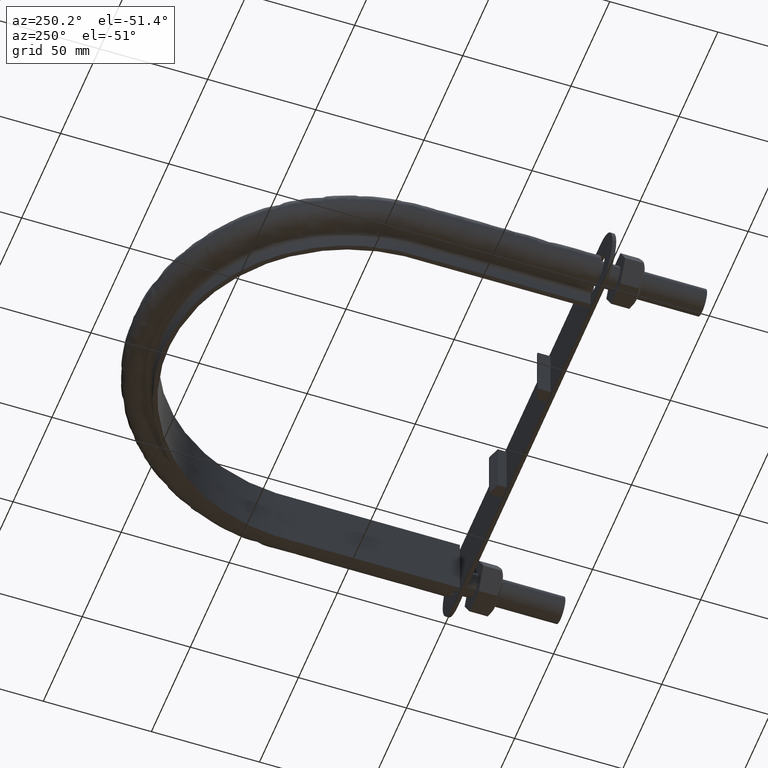
[diagram: clean part render]
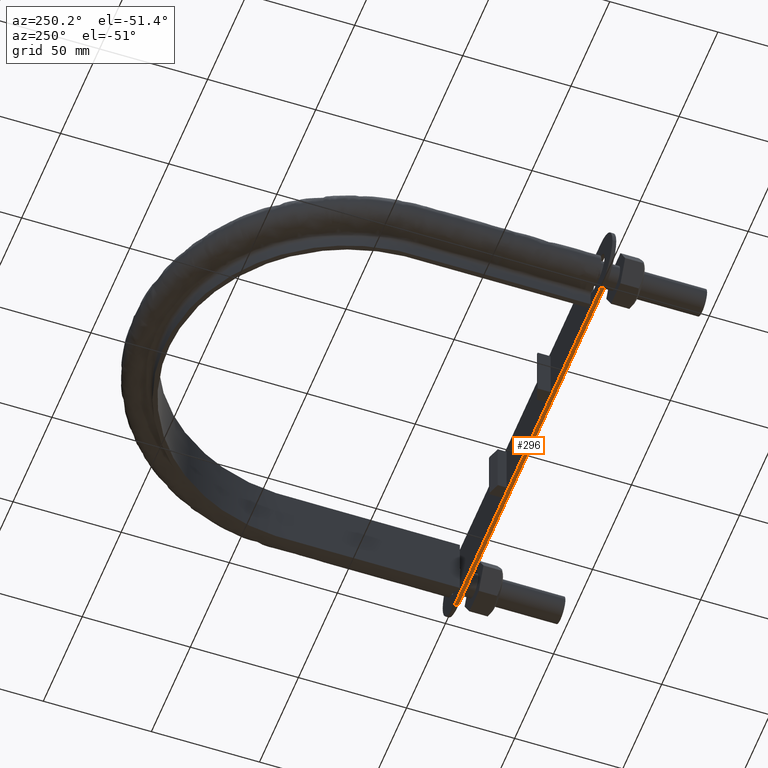
[diagram: same view with one face highlighted and labeled with its STEP entity id]
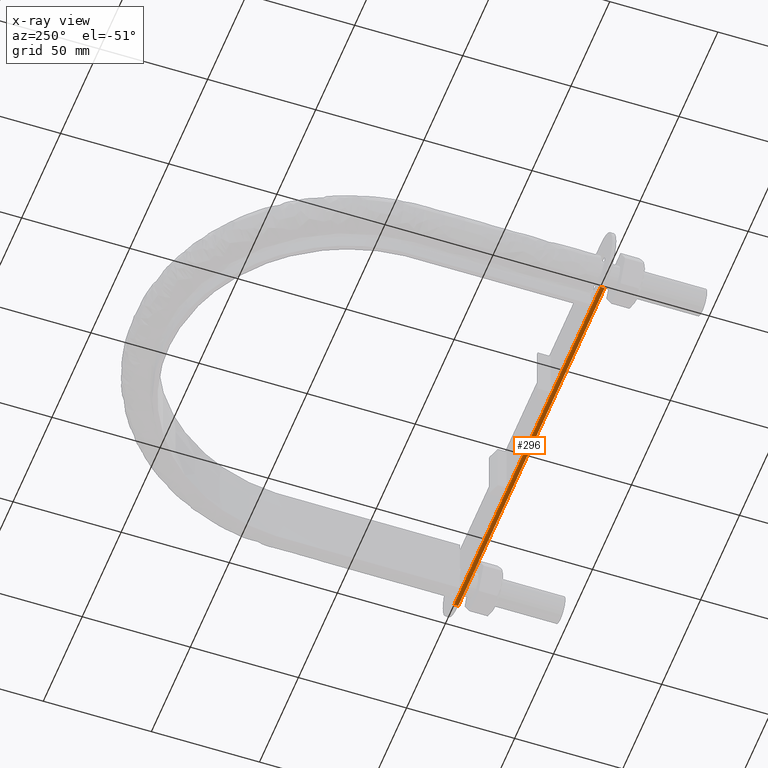
[diagram: x-ray of the same camera — body ghosted, the highlighted face saturated]
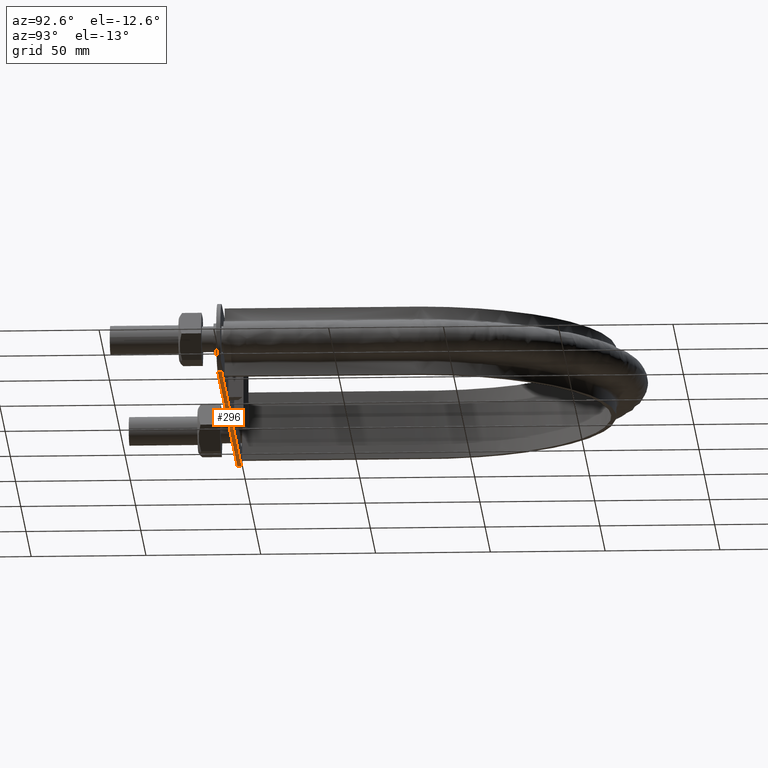
[diagram: same view with one face highlighted and labeled with its STEP entity id]
A machine part, auxiliary view. The second image highlights one B-rep face of the part: STEP entity #296.
The next image is the same camera in x-ray: the body ghosted, the highlighted face saturated — about 0% of this face is hidden behind the body in this view.
A second angle (auxiliary view) of the same face is appended — the face is thin or edge-on in the first view.
In plain terms, the highlighted planar face has unit normal (-0, 0, -1).
Its self-contained STEP definition (entity closure, byte-faithful):
#296 = ADVANCED_FACE( '', ( #422 ), #423, .T. );
#422 = FACE_OUTER_BOUND( '', #1508, .T. );
#423 = PLANE( '', #1509 );
#1508 = EDGE_LOOP( '', ( #1863, #1864, #1865, #1866 ) );
#1509 = AXIS2_PLACEMENT_3D( '', #1867, #1868, #1869 );
#1863 = ORIENTED_EDGE( '', *, *, #2270, .F. );
#1864 = ORIENTED_EDGE( '', *, *, #2287, .F. );
#1865 = ORIENTED_EDGE( '', *, *, #2237, .T. );
#1866 = ORIENTED_EDGE( '', *, *, #2285, .T. );
#1867 = CARTESIAN_POINT( '', ( 92.4499999998824, 46.8000000000003, -15.0000000007247 ) );
#1868 = DIRECTION( '', ( -7.83837578177664E-012, 5.38325119449561E-017, -1.00000000000000 ) );
#1869 = DIRECTION( '', ( 1.00000000000000, -2.44484870125622E-016, -7.83837578177664E-012 ) );
#2237 = EDGE_CURVE( '', #2446, #2444, #2447, .T. );
#2270 = EDGE_CURVE( '', #2504, #2506, #2507, .T. );
#2285 = EDGE_CURVE( '', #2444, #2506, #2531, .T. );
#2287 = EDGE_CURVE( '', #2446, #2504, #2534, .T. );
#2444 = VERTEX_POINT( '', #2942 );
#2446 = VERTEX_POINT( '', #2944 );
#2447 = LINE( '', #2945, #2946 );
#2504 = VERTEX_POINT( '', #3027 );
#2506 = VERTEX_POINT( '', #3029 );
#2507 = LINE( '', #3030, #3031 );
#2531 = LINE( '', #3065, #3066 );
#2534 = LINE( '', #3069, #3070 );
#2942 = CARTESIAN_POINT( '', ( -95.5500000001176, 46.8000000000003, -14.9999999992510 ) );
#2944 = CARTESIAN_POINT( '', ( 92.4499999998824, 46.8000000000003, -15.0000000007246 ) );
#2945 = CARTESIAN_POINT( '', ( 92.4499999998824, 46.8000000000003, -15.0000000007247 ) );
#2946 = VECTOR( '', #3417, 1000.00000000000 );
#3027 = CARTESIAN_POINT( '', ( 92.4499999998824, 48.6000000000003, -15.0000000007246 ) );
#3029 = CARTESIAN_POINT( '', ( -95.5500000001176, 48.6000000000003, -14.9999999992510 ) );
#3030 = CARTESIAN_POINT( '', ( 92.4499999998824, 48.6000000000003, -15.0000000007247 ) );
#3031 = VECTOR( '', #3466, 1000.00000000000 );
#3065 = CARTESIAN_POINT( '', ( -95.5500000001176, 46.8000000000003, -14.9999999992510 ) );
#3066 = VECTOR( '', #3489, 1000.00000000000 );
#3069 = CARTESIAN_POINT( '', ( 92.4499999998824, 46.8000000000003, -15.0000000007246 ) );
#3070 = VECTOR( '', #3493, 1000.00000000000 );
#3417 = DIRECTION( '', ( -1.00000000000000, 2.44484870125622E-016, 7.83837578177664E-012 ) );
#3466 = DIRECTION( '', ( -1.00000000000000, 2.44484870125622E-016, 7.83837578177664E-012 ) );
#3489 = DIRECTION( '', ( 2.44484870126044E-016, 1.00000000000000, 5.38325119430397E-017 ) );
#3493 = DIRECTION( '', ( 2.44484870126044E-016, 1.00000000000000, 5.38325119430397E-017 ) );